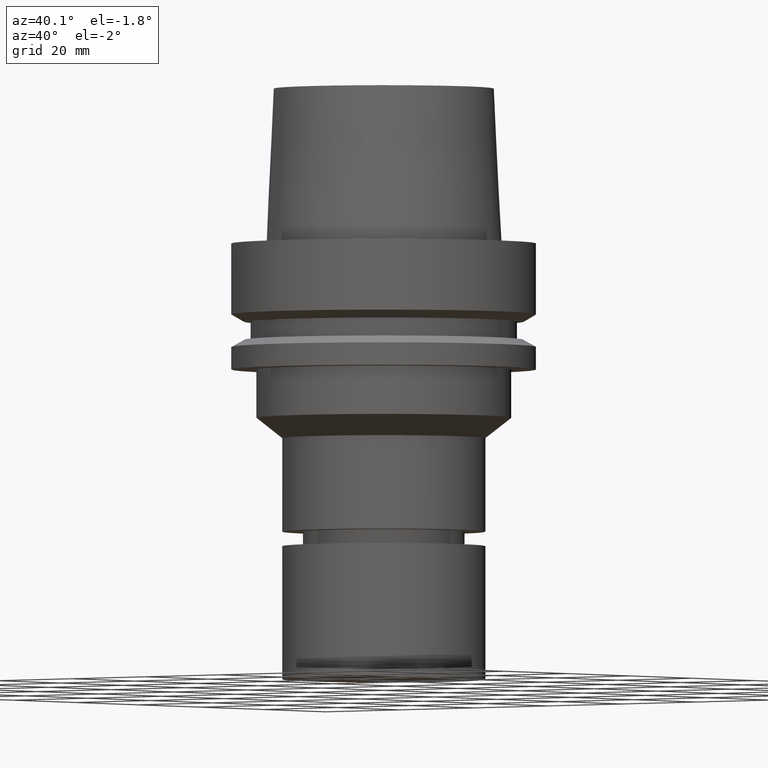
[diagram: clean part render]
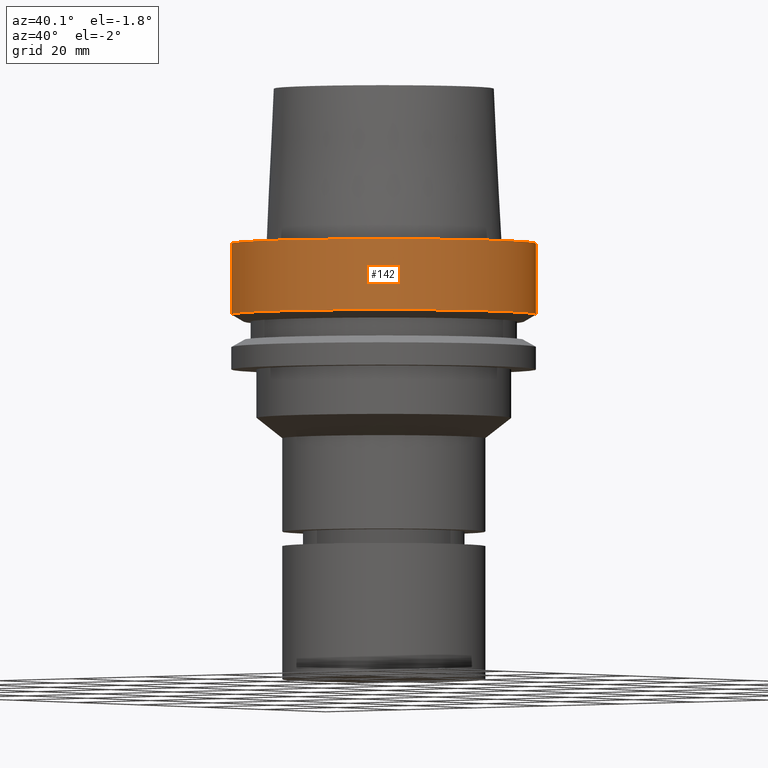
[diagram: same view with one face highlighted and labeled with its STEP entity id]
A machine part, auxiliary view. The second image highlights one B-rep face of the part: STEP entity #142.
In plain terms, the highlighted cylindrical surface (bore or boss wall) has radius 31.5 mm, axis along (-0, -0, 1).
Its self-contained STEP definition (entity closure, byte-faithful):
#133=EDGE_CURVE('Unnamed[1]',#301,#301,#302,.T.);
#142=ADVANCED_FACE('Unnamed[1]',(#312,#313),#314,.T.);
#180=EDGE_CURVE('Unnamed[1]',#371,#371,#372,.T.);
#301=VERTEX_POINT('',#514);
#302=CIRCLE('',#515,31.5);
#312=FACE_BOUND('',#527,.T.);
#313=FACE_BOUND('',#528,.T.);
#314=CYLINDRICAL_SURFACE('',#529,31.5);
#371=VERTEX_POINT('',#600);
#372=CIRCLE('',#601,31.5000000000001);
#514=CARTESIAN_POINT('',(8.95369947681261E-016,31.5,-14.6225009252407));
#515=AXIS2_PLACEMENT_3D('',#728,#729,#730);
#527=EDGE_LOOP('',(#738));
#528=EDGE_LOOP('',(#739));
#529=AXIS2_PLACEMENT_3D('',#740,#741,#742);
#600=CARTESIAN_POINT('',(-3.88267476788467E-031,31.5000000000001,3.85763741731417E-015));
#601=AXIS2_PLACEMENT_3D('',#803,#804,#805);
#728=CARTESIAN_POINT('',(8.95369947681262E-016,1.79073989536252E-015,-14.6225009252407));
#729=DIRECTION('',(-6.12323399573677E-017,-1.22464679914735E-016,1.0));
#730=DIRECTION('',(-1.23259516440783E-032,1.0,1.22464679914735E-016));
#738=ORIENTED_EDGE('',*,*,#180,.F.);
#739=ORIENTED_EDGE('',*,*,#133,.T.);
#740=CARTESIAN_POINT('',(4.47684973840631E-016,8.95369947681262E-016,-7.31125046262035));
#741=DIRECTION('',(-6.12323399573677E-017,-1.22464679914735E-016,1.0));
#742=DIRECTION('',(-1.23259516440783E-032,1.0,1.22464679914735E-016));
#803=CARTESIAN_POINT('',(0.0,0.0,0.0));
#804=DIRECTION('',(-6.12323399573677E-017,-1.22464679914735E-016,1.0));
#805=DIRECTION('',(-1.23259516440783E-032,1.0,1.22464679914735E-016));